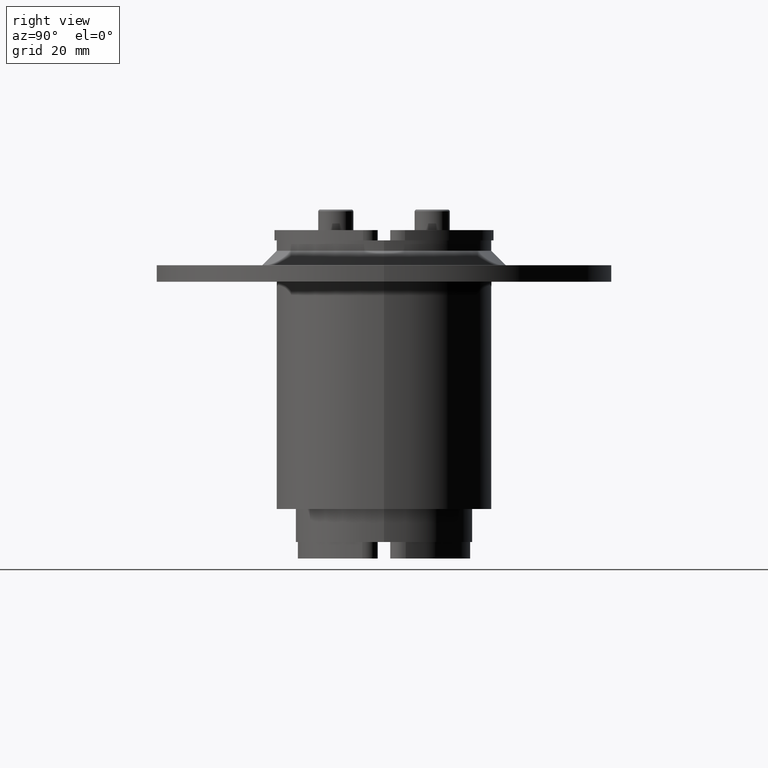
[diagram: clean part render]
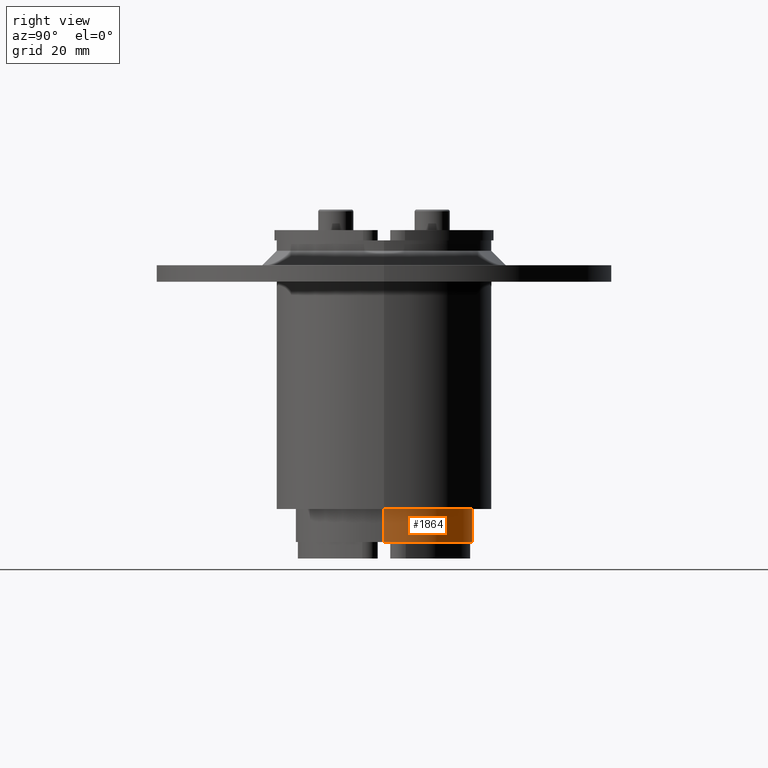
[diagram: same view with one face highlighted and labeled with its STEP entity id]
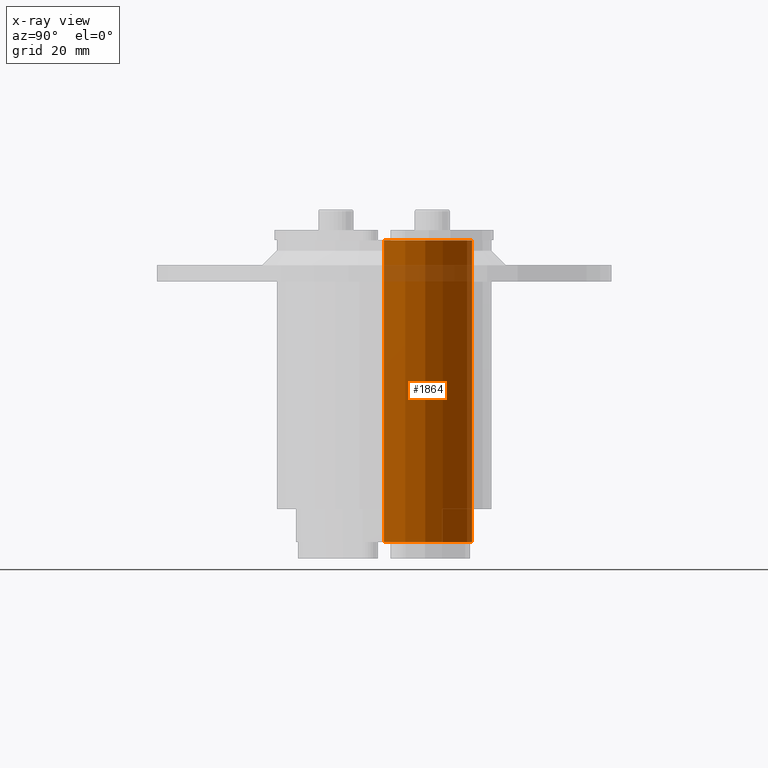
[diagram: x-ray of the same camera — body ghosted, the highlighted face saturated]
A machine part, right view. The second image highlights one B-rep face of the part: STEP entity #1864.
The next image is the same camera in x-ray: the body ghosted, the highlighted face saturated — about 5% of this face is hidden behind the body in this view.
In plain terms, the highlighted cylindrical surface (partial cylindrical patch) has radius 21.5 mm, axis along (0, -0, 1).
Its self-contained STEP definition (entity closure, byte-faithful):
#1724=CARTESIAN_POINT('',(43.697252690602397,22.442229673935365,-36.5));
#1725=VERTEX_POINT('',#1724);
#1726=CARTESIAN_POINT('',(0.697252690602397,22.442229673935369,-36.5));
#1727=VERTEX_POINT('',#1726);
#1728=CARTESIAN_POINT('',(22.197252690602397,22.442229673935365,-36.5));
#1729=DIRECTION('',(0.0,0.0,-1.0));
#1730=DIRECTION('',(-1.0,0.0,0.0));
#1731=AXIS2_PLACEMENT_3D('',#1728,#1729,#1730);
#1732=CIRCLE('',#1731,21.5);
#1733=EDGE_CURVE('',#1725,#1727,#1732,.T.);
#1772=CARTESIAN_POINT('',(0.697252690602397,22.442229673935369,36.5));
#1773=VERTEX_POINT('',#1772);
#1774=CARTESIAN_POINT('',(0.697252690602397,22.442229673935369,36.5));
#1775=DIRECTION('',(0.0,0.0,-1.0));
#1776=VECTOR('',#1775,73.0);
#1777=LINE('',#1774,#1776);
#1778=EDGE_CURVE('',#1773,#1727,#1777,.T.);
#1829=CARTESIAN_POINT('',(43.697252690602397,22.442229673935365,36.5));
#1830=VERTEX_POINT('',#1829);
#1837=CARTESIAN_POINT('',(43.697252690602397,22.442229673935365,-36.5));
#1838=DIRECTION('',(0.0,0.0,1.0));
#1839=VECTOR('',#1838,73.0);
#1840=LINE('',#1837,#1839);
#1841=EDGE_CURVE('',#1725,#1830,#1840,.T.);
#1847=CARTESIAN_POINT('',(22.197252690602397,22.442229673935365,0.0));
#1848=DIRECTION('',(0.0,0.0,1.0));
#1849=DIRECTION('',(-1.0,0.0,0.0));
#1850=AXIS2_PLACEMENT_3D('',#1847,#1848,#1849);
#1851=CYLINDRICAL_SURFACE('',#1850,21.5);
#1852=ORIENTED_EDGE('',*,*,#1841,.T.);
#1853=CARTESIAN_POINT('',(22.197252690602397,22.442229673935365,36.5));
#1854=DIRECTION('',(0.0,0.0,1.0));
#1855=DIRECTION('',(-1.0,0.0,0.0));
#1856=AXIS2_PLACEMENT_3D('',#1853,#1854,#1855);
#1857=CIRCLE('',#1856,21.5);
#1858=EDGE_CURVE('',#1773,#1830,#1857,.T.);
#1859=ORIENTED_EDGE('',*,*,#1858,.F.);
#1860=ORIENTED_EDGE('',*,*,#1778,.T.);
#1861=ORIENTED_EDGE('',*,*,#1733,.F.);
#1862=EDGE_LOOP('',(#1852,#1859,#1860,#1861));
#1863=FACE_OUTER_BOUND('',#1862,.T.);
#1864=ADVANCED_FACE('',(#1863),#1851,.T.);